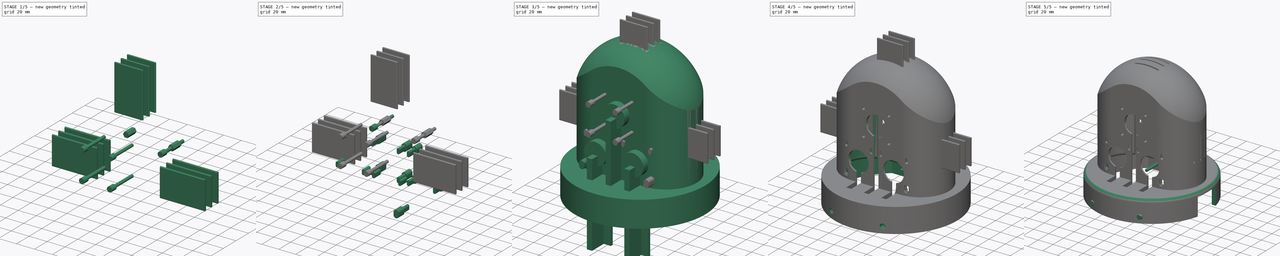
[diagram: build sequence overview — one tinted view per stage of 5, left to right]
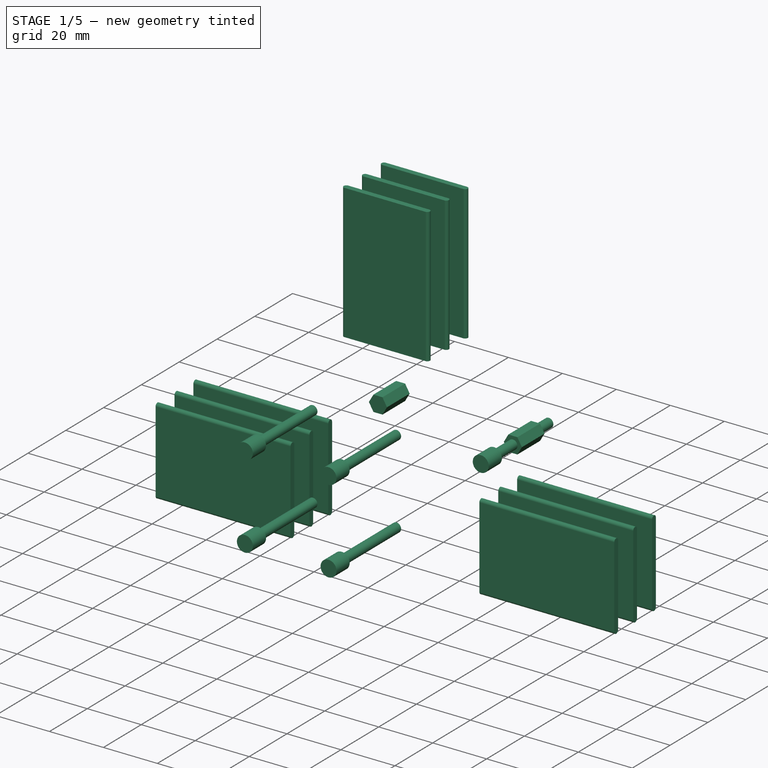
[diagram: stage 1 of 5 — iso view after this stage's code; geometry added in this stage tinted green]
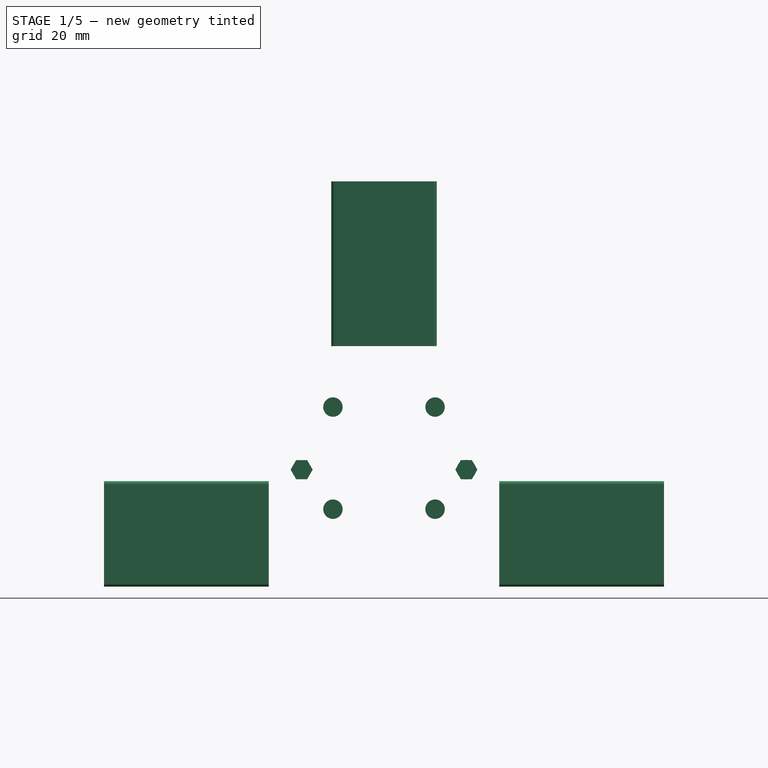
[diagram: stage 1 of 5 — front view after this stage's code; geometry added in this stage tinted green]
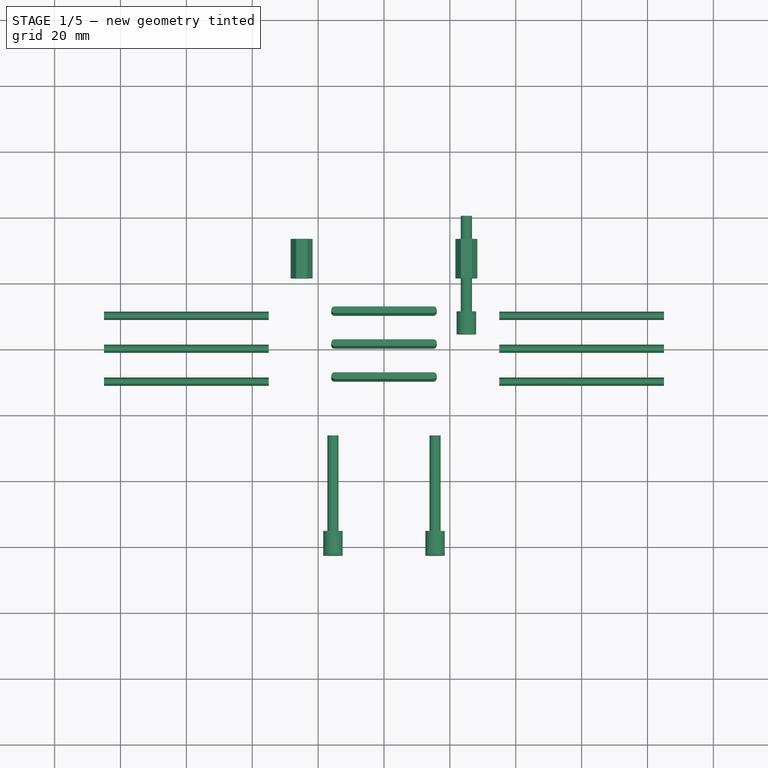
[diagram: stage 1 of 5 — top view after this stage's code; geometry added in this stage tinted green]
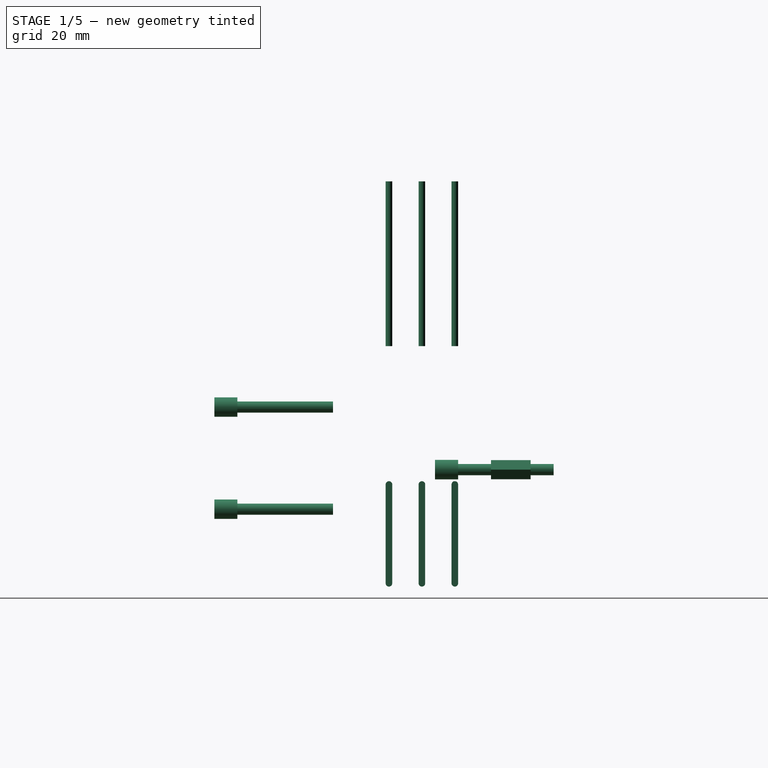
[diagram: stage 1 of 5 — right view after this stage's code; geometry added in this stage tinted green]
FCSTD DOCUMENT  (FreeCAD 0.16RUnknown)
Label: Art1Body
License: All rights reserved
LicenseURL: http://en.wikipedia.org/wiki/All_rights_reserved
objects: Part::FeaturePython×44, Part::MultiFuse×14, Part::Cut×10, Sketcher::SketchObject×8, Part::Cylinder×6, Part::Box×6, PartDesign::Pad×5, PartDesign::Revolution×2, Part::Prism×1, Part::Offset×1, App::DocumentObjectGroup×1, Part::Fillet×1
note: 105 computed .brp shape members not serialized (recipe doc carries the construction recipe); baked Part::Feature solids carry a one-line shape summary decoded from their .brp

FEATURE [Part::Cylinder] Cylinder  label="M3BoltHead"
  Angle = 360
  Height = 7
  Radius = 2.95
FEATURE [Part::Cylinder] Cylinder001  label="M3BoltBody"
  Angle = 360
  Height = 30
  Placement = pos=(0,0,6) rot=(0,0,1;0rad)
  Radius = 1.7
FEATURE [Part::MultiFuse] Fusion  label="M3Bolt"
  Shapes = -> [Cylinder001,Cylinder]
FEATURE [Part::Prism] Prism  label="M3Nut"
  Circumradius = 3.35
  Height = 12
  Polygon = 6
FEATURE [Part::FeaturePython] Clone347  label="Clone of M3Bolt117"  # Draft clone (typed FeaturePython)
  Objects = -> [Fusion]
  Placement = pos=(25,4,94.5) rot=(0,0.707107,0.707107;3.14159rad)
  Scale = (1,1,1)
FEATURE [Part::FeaturePython] Clone348  label="Clone of M3Nut015"  # Draft clone (typed FeaturePython)
  Objects = -> [Prism]
  Placement = pos=(-25,33,94.5) rot=(1,0,0;1.5708rad)
  Scale = (1,1,1)
FEATURE [Part::FeaturePython] Clone349  label="Clone of M3Nut016"  # Draft clone (typed FeaturePython)
  Objects = -> [Prism]
  Placement = pos=(25,33,94.5) rot=(1,0,0;1.5708rad)
  Scale = (1,1,1)
FEATURE [App::DocumentObjectGroup] Group  label="Master"
  Group = -> [Fusion,Prism,Pad006,Fusion015,Fusion017,Cylinder1003,Cut020]
FEATURE [Part::FeaturePython] Clone  label="Clone of M3Bolt"  # Draft clone (typed FeaturePython)
  Objects = -> [Fusion]
  Placement = pos=(15.5,-63,113.5) rot=(-1,0,0;1.5708rad)
  Scale = (1,1,1)
FEATURE [Part::FeaturePython] Clone350  label="Clone of M3Bolt118"  # Draft clone (typed FeaturePython)
  Objects = -> [Fusion]
  Placement = pos=(15.5,-63,82.5) rot=(-1,0,0;1.5708rad)
  Scale = (1,1,1)
FEATURE [Part::FeaturePython] Clone351  label="Clone of M3Bolt119"  # Draft clone (typed FeaturePython)
  Objects = -> [Fusion]
  Placement = pos=(-15.5,-63,113.5) rot=(-1,0,0;1.5708rad)
  Scale = (1,1,1)
FEATURE [Part::FeaturePython] Clone352  label="Clone of M3Bolt120"  # Draft clone (typed FeaturePython)
  Objects = -> [Fusion]
  Placement = pos=(-15.5,-63,82.5) rot=(-1,0,0;1.5708rad)
  Scale = (1,1,1)
FEATURE [Sketcher::SketchObject] Sketch
  Placement = pos=(60,0,60) rot=(0.57735,0.57735,0.57735;2.0944rad)
  sketch-geometry (4):
    g0: ArcOfCircle CenterX=0 CenterY=30 CenterZ=0 NormalX=0 NormalY=0 NormalZ=1 Radius=1 StartAngle=0 EndAngle=3.14159
    g1: ArcOfCircle CenterX=0 CenterY=0 CenterZ=0 NormalX=0 NormalY=0 NormalZ=1 Radius=1 StartAngle=3.14159 EndAngle=6.28319
    g2: LineSegment StartX=-1 StartY=30 StartZ=0 EndX=-1 EndY=0 EndZ=0
    g3: LineSegment StartX=1 StartY=30 StartZ=0 EndX=1 EndY=0 EndZ=0
  constraints (9):
    c: Tangent(g0,g3) = 1.5708
    c: Tangent(g0,g2) = -1.5708
    c: Tangent(g2,g1) = -1.5708
    c: Tangent(g3,g1) = 1.5708
    c: Vertical(g2)
    c: Equal(g0,g1)
    c: DistanceY(g2,g2) = 30
    c: Radius(g0) = 1
    c: Coincident(g1,g-1)
FEATURE [PartDesign::Pad] Pad
  Length = 50
  Length2 = 100
  Midplane = true
  Placement = pos=(60,0,60) rot=(0.57735,0.57735,0.57735;2.0944rad)
  Sketch = -> Sketch
  Type = 0
FEATURE [Part::FeaturePython] Clone353  label="Clone of Pad"  # Draft clone (typed FeaturePython)
  Objects = -> [Pad]
  Placement = pos=(60,10,60) rot=(0.57735,0.57735,0.57735;2.0944rad)
  Scale = (1,1,1)
FEATURE [Part::FeaturePython] Clone354  label="Clone of Pad001"  # Draft clone (typed FeaturePython)
  Objects = -> [Pad]
  Placement = pos=(60,-10,60) rot=(0.57735,0.57735,0.57735;2.0944rad)
  Scale = (1,1,1)
FEATURE [Part::MultiFuse] Fusion058
  Placement = pos=(0,0,0) rot=(0,0,1;3.14159rad)
  Shapes = -> [Clone354,Clone353,Pad]
FEATURE [Part::FeaturePython] Clone355  label="Clone of Fusion058"  # Draft clone (typed FeaturePython)
  Objects = -> [Fusion058]
  Scale = (1,1,1)
FEATURE [Part::FeaturePython] Clone356  label="Clone of Fusion059"  # Draft clone (typed FeaturePython)
  Objects = -> [Fusion058]
  Placement = pos=(-75,0,217) rot=(0,1,0;1.5708rad)
  Scale = (1,1,1)
FEATURE [Part::MultiFuse] Fusion059
  Shapes = -> [Clone355,Clone356,Fusion058]
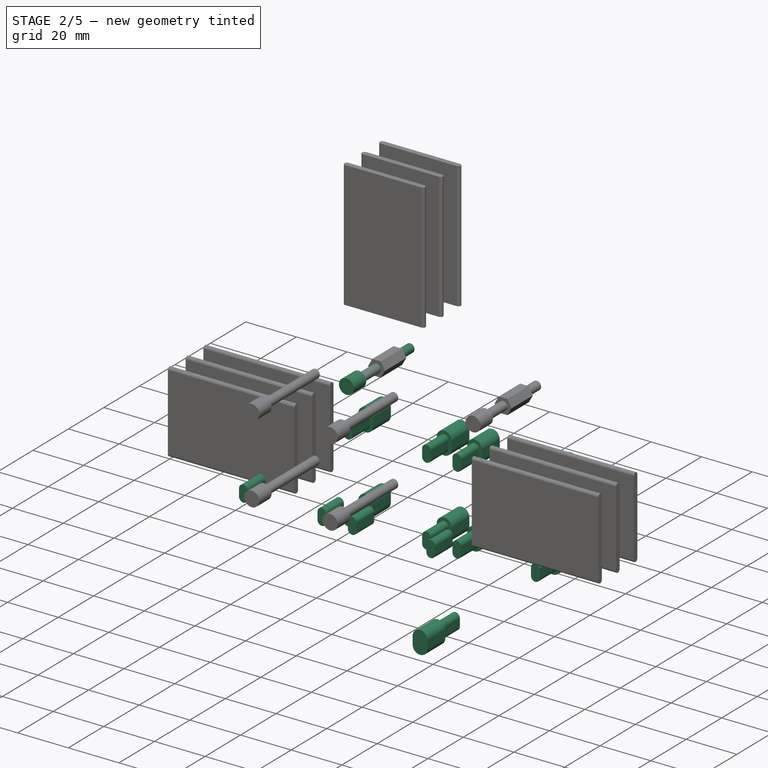
[diagram: stage 2 of 5 — iso view after this stage's code; geometry added in this stage tinted green]
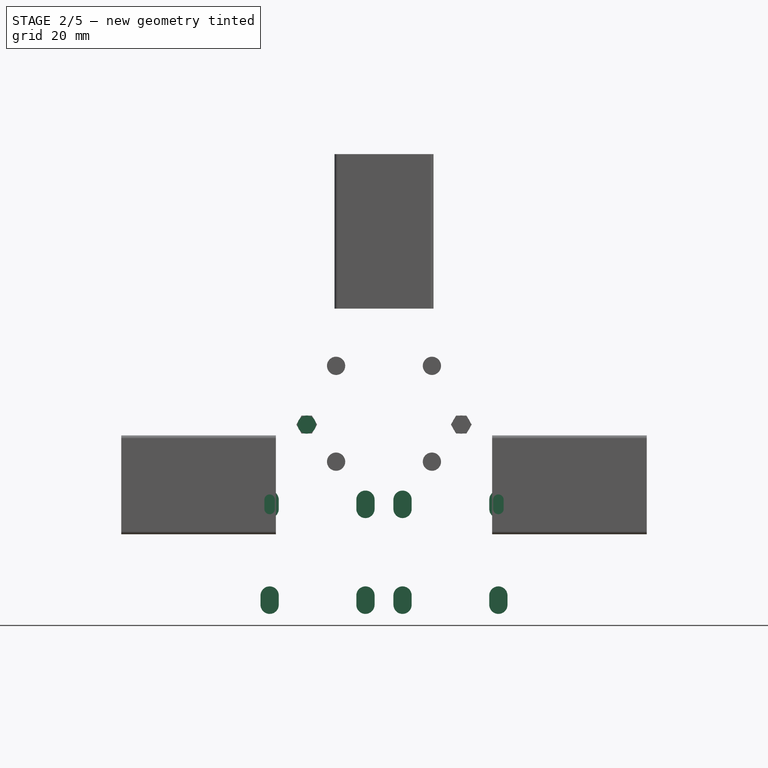
[diagram: stage 2 of 5 — front view after this stage's code; geometry added in this stage tinted green]
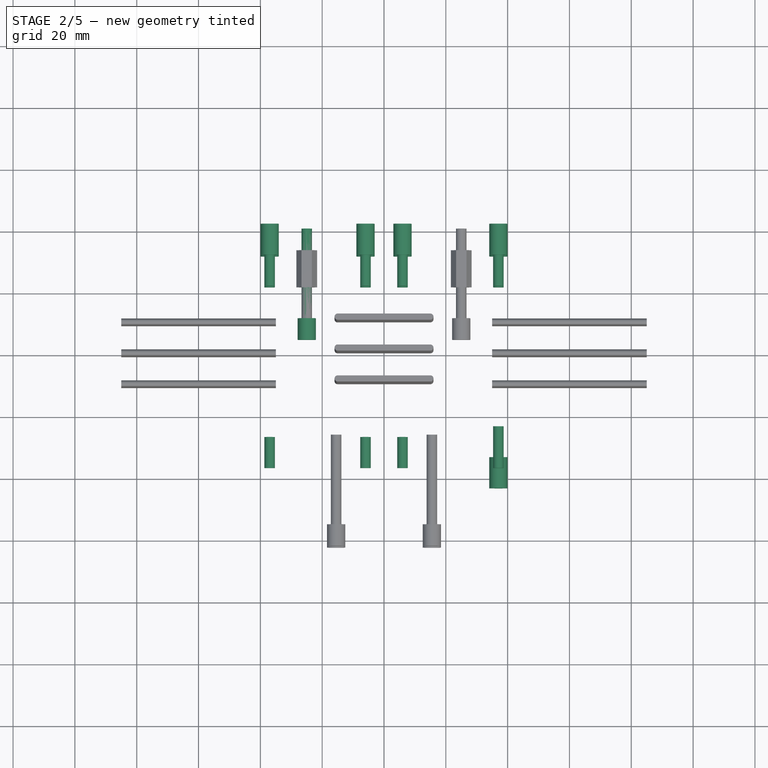
[diagram: stage 2 of 5 — top view after this stage's code; geometry added in this stage tinted green]
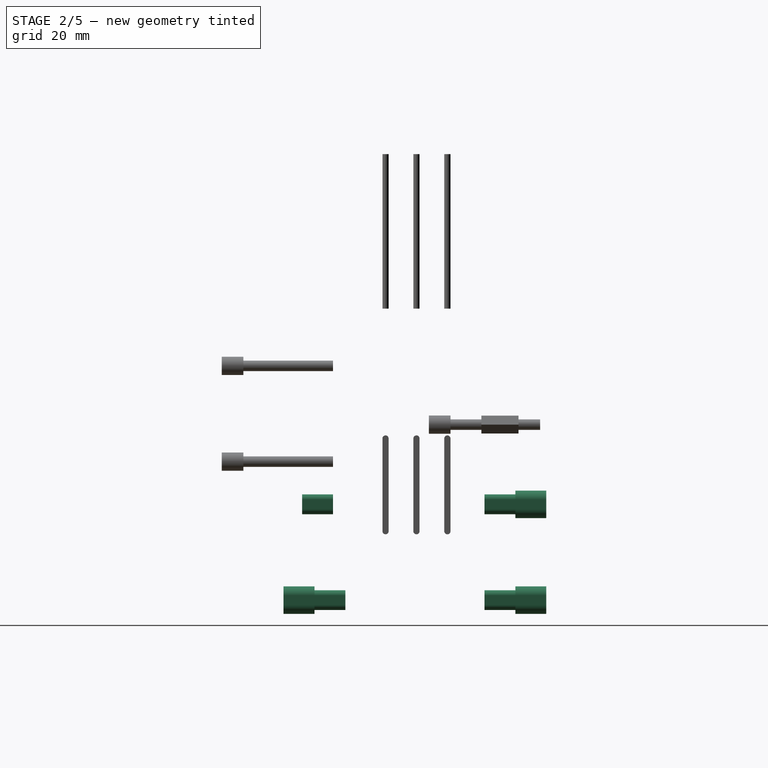
[diagram: stage 2 of 5 — right view after this stage's code; geometry added in this stage tinted green]
FEATURE [Sketcher::SketchObject] Sketch009
  sketch-geometry (4):
    g0: ArcOfCircle CenterX=-1.5 CenterY=0 CenterZ=0 NormalX=0 NormalY=0 NormalZ=1 Radius=1.7 StartAngle=1.5708 EndAngle=4.71239
    g1: ArcOfCircle CenterX=1.5 CenterY=0 CenterZ=0 NormalX=0 NormalY=0 NormalZ=1 Radius=1.7 StartAngle=4.71239 EndAngle=7.85398
    g2: LineSegment StartX=-1.5 StartY=-1.7 StartZ=0 EndX=1.5 EndY=-1.7 EndZ=0
    g3: LineSegment StartX=-1.5 StartY=1.7 StartZ=0 EndX=1.5 EndY=1.7 EndZ=0
  constraints (10):
    c: Tangent(g0,g3) = 1.5708
    c: Tangent(g0,g2) = -1.5708
    c: Tangent(g2,g1) = -1.5708
    c: Tangent(g3,g1) = 1.5708
    c: Horizontal(g2)
    c: Equal(g0,g1)
    c: Radius(g0) = 1.7
    c: DistanceX(g0,g1) = 3
    c: PointOnObject(g0,g-1)
    c: DistanceX(g-1,g0) = -1.5
FEATURE [PartDesign::Pad] Pad006  label="M3BoltSlider"
  Length = 10
  Length2 = 100
  Sketch = -> Sketch009
  Type = 0
FEATURE [Part::FeaturePython] Clone040  label="Clone of M3BoltSlider003"  # Draft clone (typed FeaturePython)
  Objects = -> [Pad006]
  Scale = (1,1,1)
FEATURE [Sketcher::SketchObject] Sketch010
  Placement = pos=(0,0,10) rot=(0,0,1;0rad)
  sketch-geometry (4):
    g0: ArcOfCircle CenterX=-1.5 CenterY=0 CenterZ=0 NormalX=0 NormalY=0 NormalZ=1 Radius=2.95 StartAngle=1.5708 EndAngle=4.71239
    g1: ArcOfCircle CenterX=1.5 CenterY=0 CenterZ=0 NormalX=0 NormalY=0 NormalZ=1 Radius=2.95 StartAngle=4.71239 EndAngle=7.85398
    g2: LineSegment StartX=-1.5 StartY=-2.95 StartZ=0 EndX=1.5 EndY=-2.95 EndZ=0
    g3: LineSegment StartX=-1.5 StartY=2.95 StartZ=0 EndX=1.5 EndY=2.95 EndZ=0
  constraints (10):
    c: Tangent(g0,g3) = 1.5708
    c: Tangent(g0,g2) = -1.5708
    c: Tangent(g2,g1) = -1.5708
    c: Tangent(g3,g1) = 1.5708
    c: Horizontal(g2)
    c: Equal(g0,g1)
    c: Radius(g0) = 2.95
    c: DistanceX(g0,g1) = 3
    c: PointOnObject(g0,g-1)
    c: DistanceX(g-1,g0) = -1.5
FEATURE [PartDesign::Pad] Pad007  label="M3BoltSliderHead"
  Length = 10
  Length2 = 100
  Placement = pos=(0,0,10) rot=(0,0,1;0rad)
  Sketch = -> Sketch010
  Type = 0
FEATURE [Part::MultiFuse] Fusion015  label="M3BoldSliderWithHead"
  Shapes = -> [Pad007,Clone040]
FEATURE [Part::FeaturePython] Clone045  label="Clone of M3BoldSliderWithHead001"  # Draft clone (typed FeaturePython)
  Objects = -> [Fusion015]
  Placement = pos=(37,-23,37.7) rot=(0.57735,-0.57735,0.57735;2.0944rad)
  Scale = (1,1,1)
FEATURE [Part::FeaturePython] Clone046  label="Clone of M3BoltSlider004"  # Draft clone (typed FeaturePython)
  Objects = -> [Pad006]
  Placement = pos=(-6,-27,68.7) rot=(0.57735,-0.57735,0.57735;2.0944rad)
  Scale = (1,1,1)
FEATURE [Part::FeaturePython] Clone047  label="Clone of M3BoltSlider005"  # Draft clone (typed FeaturePython)
  Objects = -> [Pad006]
  Placement = pos=(6,-27,68.7) rot=(0.57735,-0.57735,0.57735;2.0944rad)
  Scale = (1,1,1)
FEATURE [Part::FeaturePython] Clone048  label="Clone of M3BoltSlider006"  # Draft clone (typed FeaturePython)
  Objects = -> [Pad006]
  Placement = pos=(37,-27,68.7) rot=(0.57735,-0.57735,0.57735;2.0944rad)
  Scale = (1,1,1)
FEATURE [Sketcher::SketchObject] Sketch018
  Placement = pos=(2e-12,35,98) rot=(1,0,0;1.5708rad)
  sketch-geometry (4):
    g0: ArcOfCircle CenterX=0 CenterY=0 CenterZ=0 NormalX=0 NormalY=0 NormalZ=1 Radius=28 StartAngle=0.167447 EndAngle=2.97414
    g1: ArcOfCircle CenterX=0 CenterY=0 CenterZ=0 NormalX=0 NormalY=0 NormalZ=1 Radius=20 StartAngle=0.167448 EndAngle=2.97414
    g2: ArcOfCircle CenterX=23.6643 CenterY=4 CenterZ=0 NormalX=0 NormalY=0 NormalZ=1 Radius=4 StartAngle=3.30904 EndAngle=6.45063
    g3: ArcOfCircle CenterX=-23.6643 CenterY=4 CenterZ=0 NormalX=0 NormalY=0 NormalZ=1 Radius=4 StartAngle=2.97414 EndAngle=6.11574
  constraints (14):
    c: Coincident(g0,g-1)
    c: Coincident(g1,g-1)
    c: Coincident(g2,g0)
    c: Coincident(g3,g1)
    c: Coincident(g3,g0)
    c: Coincident(g1,g2)
    c: Radius(g1) = 20
    c: Radius(g0) = 28
    c: Tangent(g1,g3)
    c: Tangent(g1,g2)
    c: Tangent(g-1,g2)
    c: Tangent(g-1,g3)
    c: Tangent(g3,g0)
    c: Tangent(g2,g0)
FEATURE [Part::FeaturePython] Clone069  label="Clone of M3BoldSliderWithHead002"  # Draft clone (typed FeaturePython)
  Objects = -> [Fusion015]
  Placement = pos=(-37,22,37.7) rot=(0.57735,-0.57735,-0.57735;4.18879rad)
  Scale = (1,1,1)
FEATURE [Part::FeaturePython] Clone070  label="Clone of M3BoldSliderWithHead003"  # Draft clone (typed FeaturePython)
  Objects = -> [Fusion015]
  Placement = pos=(6,22,37.7) rot=(0.57735,-0.57735,-0.57735;4.18879rad)
  Scale = (1,1,1)
FEATURE [Part::FeaturePython] Clone071  label="Clone of M3BoldSliderWithHead004"  # Draft clone (typed FeaturePython)
  Objects = -> [Fusion015]
  Placement = pos=(-6,22,37.7) rot=(0.57735,-0.57735,-0.57735;4.18879rad)
  Scale = (1,1,1)
FEATURE [Part::FeaturePython] Clone072  label="Clone of M3BoldSliderWithHead005"  # Draft clone (typed FeaturePython)
  Objects = -> [Fusion015]
  Placement = pos=(37,22,37.7) rot=(0.57735,-0.57735,-0.57735;4.18879rad)
  Scale = (1,1,1)
FEATURE [Part::FeaturePython] Clone073  label="Clone of M3BoldSliderWithHead006"  # Draft clone (typed FeaturePython)
  Objects = -> [Fusion015]
  Placement = pos=(-37,22,68.7) rot=(0.57735,-0.57735,-0.57735;4.18879rad)
  Scale = (1,1,1)
FEATURE [Part::FeaturePython] Clone074  label="Clone of M3BoldSliderWithHead007"  # Draft clone (typed FeaturePython)
  Objects = -> [Fusion015]
  Placement = pos=(6,22,68.7) rot=(0.57735,-0.57735,-0.57735;4.18879rad)
  Scale = (1,1,1)
FEATURE [Part::FeaturePython] Clone075  label="Clone of M3BoldSliderWithHead008"  # Draft clone (typed FeaturePython)
  Objects = -> [Fusion015]
  Placement = pos=(-6,22,68.7) rot=(0.57735,-0.57735,-0.57735;4.18879rad)
  Scale = (1,1,1)
FEATURE [Part::FeaturePython] Clone076  label="Clone of M3BoldSliderWithHead009"  # Draft clone (typed FeaturePython)
  Objects = -> [Fusion015]
  Placement = pos=(37,22,68.7) rot=(0.57735,-0.57735,-0.57735;4.18879rad)
  Scale = (1,1,1)
FEATURE [Part::FeaturePython] Clone089  label="Clone of M3BoltSlider011"  # Draft clone (typed FeaturePython)
  Objects = -> [Pad006]
  Placement = pos=(-37,-27,68.7) rot=(0.57735,-0.57735,0.57735;2.0944rad)
  Scale = (1,1,1)
FEATURE [Part::FeaturePython] Clone346  label="Clone of M3Bolt116"  # Draft clone (typed FeaturePython)
  Objects = -> [Fusion]
  Placement = pos=(-25,4,94.5) rot=(0,0.707107,0.707107;3.14159rad)
  Scale = (1,1,1)
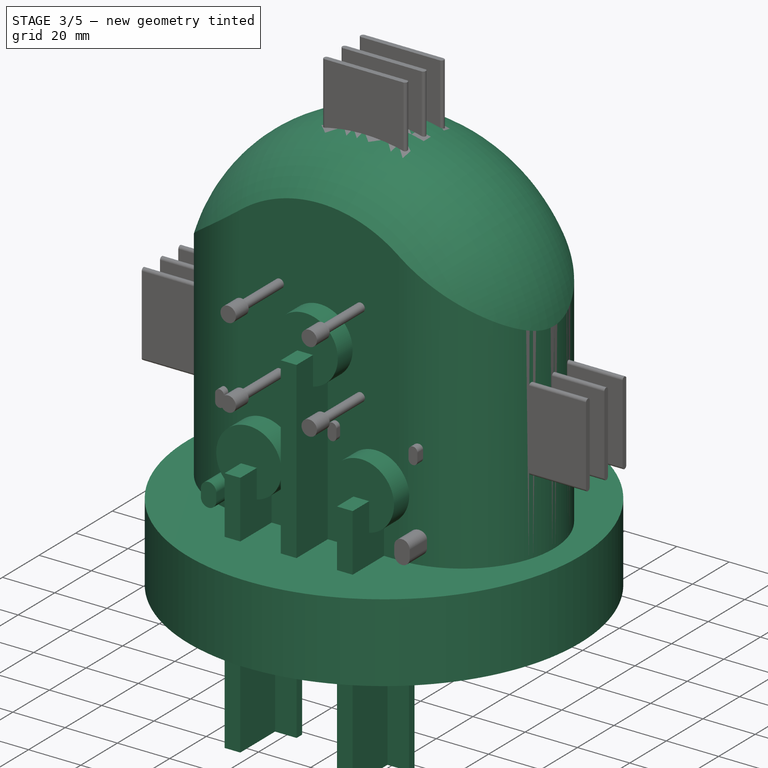
[diagram: stage 3 of 5 — iso view after this stage's code; geometry added in this stage tinted green]
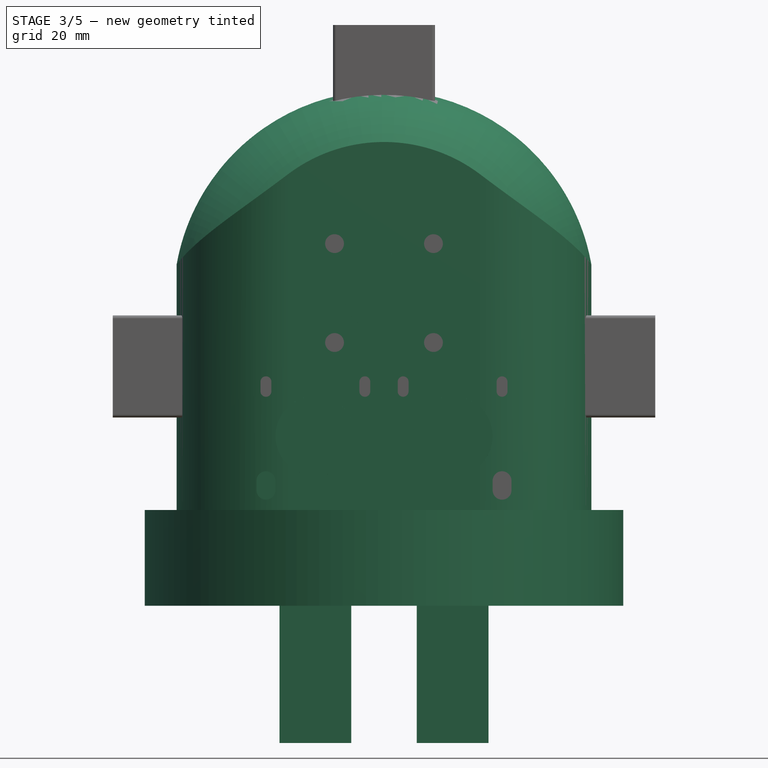
[diagram: stage 3 of 5 — front view after this stage's code; geometry added in this stage tinted green]
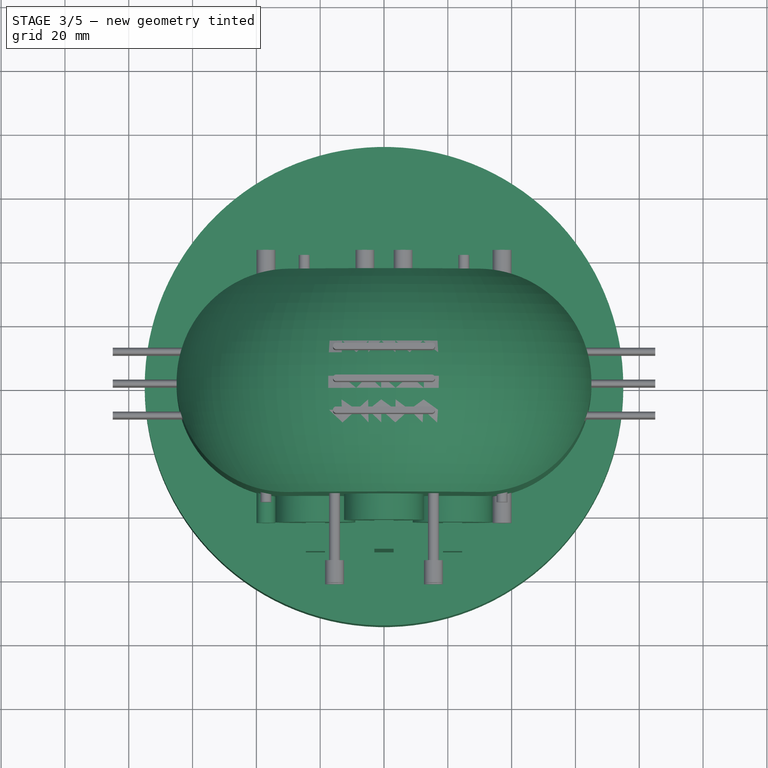
[diagram: stage 3 of 5 — top view after this stage's code; geometry added in this stage tinted green]
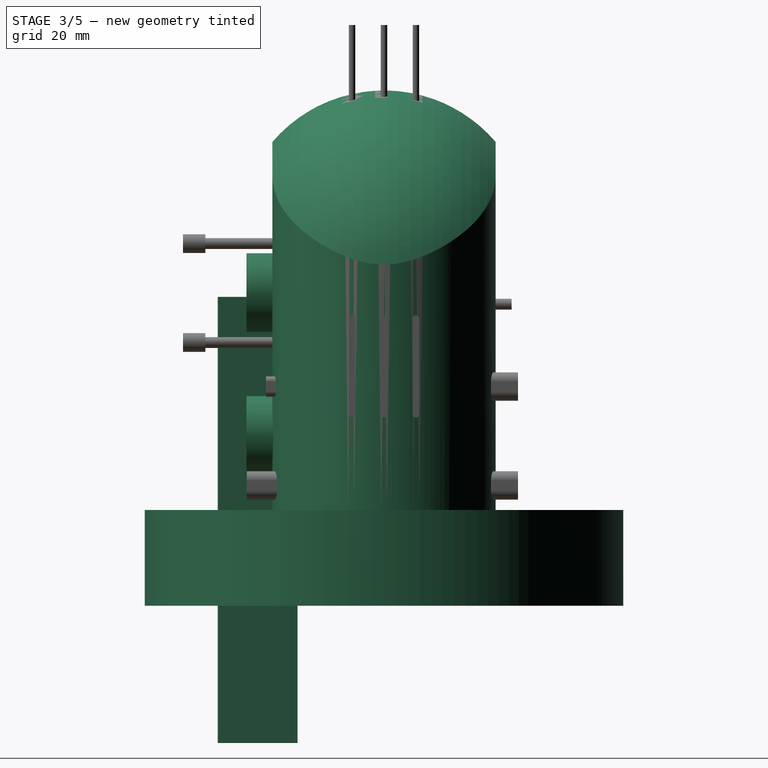
[diagram: stage 3 of 5 — right view after this stage's code; geometry added in this stage tinted green]
FEATURE [Part::Cylinder] Cylinder011  label="Cylinder009"
  Angle = 360
  Height = 30
  Radius = 75
FEATURE [Sketcher::SketchObject] Sketch012
  sketch-geometry (4):
    g0: ArcOfCircle CenterX=-30 CenterY=0 CenterZ=0 NormalX=0 NormalY=0 NormalZ=1 Radius=35 StartAngle=1.5708 EndAngle=4.71239
    g1: ArcOfCircle CenterX=30 CenterY=0 CenterZ=0 NormalX=0 NormalY=0 NormalZ=1 Radius=35 StartAngle=4.71239 EndAngle=7.85398
    g2: LineSegment StartX=-30 StartY=-35 StartZ=0 EndX=30 EndY=-35 EndZ=0
    g3: LineSegment StartX=-30 StartY=35 StartZ=0 EndX=30 EndY=35 EndZ=0
  constraints (10):
    c: Tangent(g0,g3) = 1.5708
    c: Tangent(g0,g2) = -1.5708
    c: Tangent(g2,g1) = -1.5708
    c: Tangent(g3,g1) = 1.5708
    c: Horizontal(g2)
    c: Equal(g0,g1)
    c: Radius(g0) = 35
    c: DistanceX(g2) = 60
    c: PointOnObject(g0,g-1)
    c: DistanceX(g-1,g0) = -30
FEATURE [Sketcher::SketchObject] Sketch014
  Placement = pos=(0,0,65.5) rot=(0,0,1;0rad)
  sketch-geometry (6):
    g0: ArcOfCircle CenterX=-20 CenterY=0 CenterZ=0 NormalX=0 NormalY=0 NormalZ=1 Radius=46 StartAngle=1.5708 EndAngle=4.71239
    g1: LineSegment StartX=-20 StartY=46 StartZ=0 EndX=-20 EndY=51 EndZ=0
    g2: LineSegment StartX=-20 StartY=51 StartZ=0 EndX=-120 EndY=51 EndZ=0
    g3: LineSegment StartX=-120 StartY=51 StartZ=0 EndX=-120 EndY=-51 EndZ=0
    g4: LineSegment StartX=-120 StartY=-51 StartZ=0 EndX=-20 EndY=-51 EndZ=0
    g5: LineSegment StartX=-20 StartY=-51 StartZ=0 EndX=-20 EndY=-46 EndZ=0
  constraints (19):
    c: PointOnObject(g0,g-1)
    c: Radius(g0) = 46
    c: Coincident(g1,g0)
    c: Vertical(g1)
    c: Coincident(g1,g2)
    c: Horizontal(g2)
    c: Coincident(g2,g3)
    c: Vertical(g3)
    c: Coincident(g3,g4)
    c: Horizontal(g4)
    c: Coincident(g4,g5)
    c: Coincident(g0,g5)
    c: DistanceX(g-1,g0) = -20
    c: DistanceY(g0,g0) = -92
    c: Vertical(g5)
    c: Equal(g5,g1)
    c: Equal(g2,g4)
    c: DistanceY(g1) = 5
    c: DistanceX(g4) = 100
FEATURE [PartDesign::Revolution] Revolution002
  Angle = 180
  Axis = (0,1,0)
  Base = (0,0,65.5)
  Placement = pos=(0,0,65.5) rot=(0,0,1;0rad)
  ReferenceAxis = -> Sketch014 [V_Axis]
  Sketch = -> Sketch014
FEATURE [PartDesign::Pad] Pad008
  Length = 131.5
  Length2 = 100
  Sketch = -> Sketch012
  Type = 0
FEATURE [Part::Cut] Cut017
  Base = -> Pad008
  Placement = pos=(0,0,30) rot=(0,0,1;0rad)
  Tool = -> Revolution002
FEATURE [Part::Box] Box004  label="Cube004"
  Height = 55
  Length = 85.5
  Placement = pos=(-42.75,20,22.5) rot=(0,0,1;0rad)
  Width = 10
FEATURE [Part::Box] Box005  label="Cube005"
  Height = 55
  Length = 82.5
  Placement = pos=(-41.15,-31.2,18.5) rot=(0,0,1;0rad)
  Width = 10
FEATURE [Part::Box] Box006  label="Cube006"
  Height = 60
  Length = 39.5
  Placement = pos=(-19.65,-31.2,58.5) rot=(0,0,1;0rad)
  Width = 10
FEATURE [Part::Box] Box008  label="Cube008"
  Height = 95
  Length = 22.5
  Placement = pos=(-7.5,19,0) rot=(0,0,1;0rad)
  Width = 3
FEATURE [Part::Cylinder] Cylinder012  label="Cylinder010"
  Angle = 360
  Height = 13
  Placement = pos=(3.75,22,96.2) rot=(1,0,0;1.5708rad)
  Radius = 12.5
FEATURE [Part::Box] Box009  label="Cube009"
  Height = 95
  Length = 6
  Placement = pos=(0.75,0,0) rot=(0,0,1;0rad)
  Width = 25
FEATURE [Part::MultiFuse] Fusion017  label="Art1MotorHoleMaster"
  Shapes = -> [Cylinder012,Box008,Box009]
FEATURE [Part::FeaturePython] Clone041  label="Clone of Fusion017"  # Draft clone (typed FeaturePython)
  Objects = -> [Fusion017]
  Placement = pos=(-3.75,-52.1,1.8) rot=(0,0,1;0rad)
  Scale = (1,1,1)
FEATURE [Part::FeaturePython] Clone042  label="Clone of Fusion018"  # Draft clone (typed FeaturePython)
  Objects = -> [Fusion017]
  Placement = pos=(-25.25,-52.1,-43) rot=(0,0,1;0rad)
  Scale = (1,1,1)
FEATURE [Part::FeaturePython] Clone043  label="Clone of Fusion019"  # Draft clone (typed FeaturePython)
  Objects = -> [Fusion017]
  Placement = pos=(17.75,-52.1,-43) rot=(0,0,1;0rad)
  Scale = (1,1,1)
FEATURE [Part::FeaturePython] Clone044  label="Clone of M3BoldSliderWithHead"  # Draft clone (typed FeaturePython)
  Objects = -> [Fusion015]
  Placement = pos=(-37,-23,37.7) rot=(0.57735,-0.57735,0.57735;2.0944rad)
  Scale = (1,1,1)
FEATURE [Part::MultiFuse] Fusion027
  Shapes = -> [Clone041,Clone042,Clone043]
FEATURE [Part::MultiFuse] Fusion054
  Shapes = -> [Fusion027,Box006,Box005,Box004]
FEATURE [Part::MultiFuse] Fusion056
  Shapes = -> [Clone352,Clone044,Clone045,Clone046,Clone047,Clone048,Clone069,Clone070,Clone071,Clone072,Clone073,Clone074,Clone075,Clone076,Clone089,Clone346,Clone347,Clone348,Clone349,Clone351,Clone350,Clone]
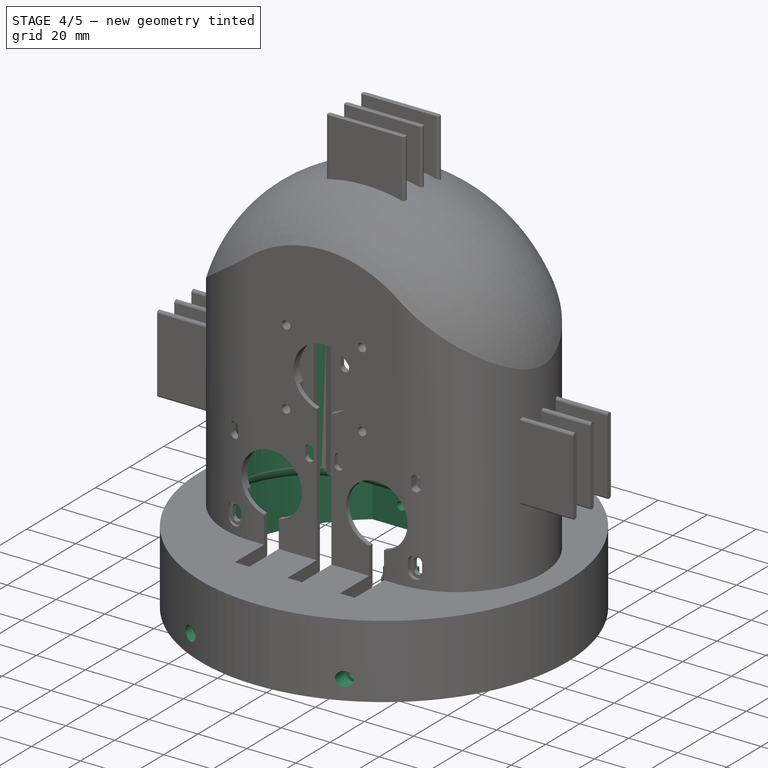
[diagram: stage 4 of 5 — iso view after this stage's code; geometry added in this stage tinted green]
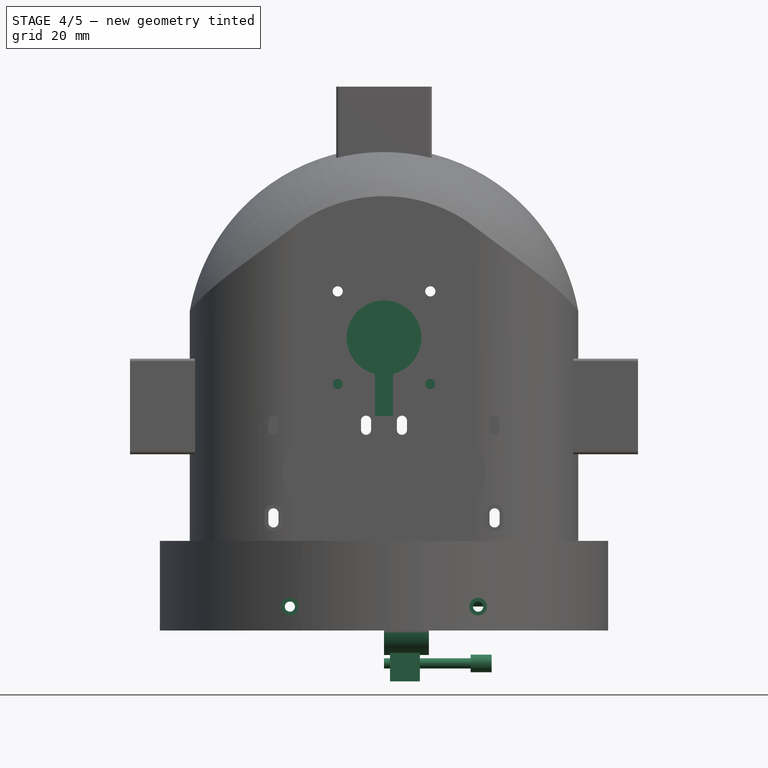
[diagram: stage 4 of 5 — front view after this stage's code; geometry added in this stage tinted green]
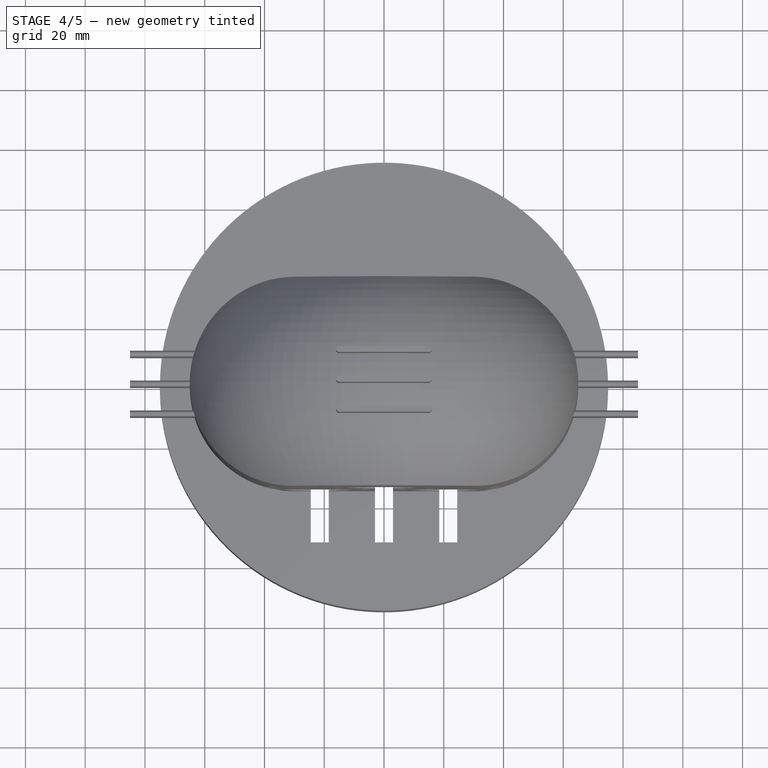
[diagram: stage 4 of 5 — top view after this stage's code; geometry added in this stage tinted green]
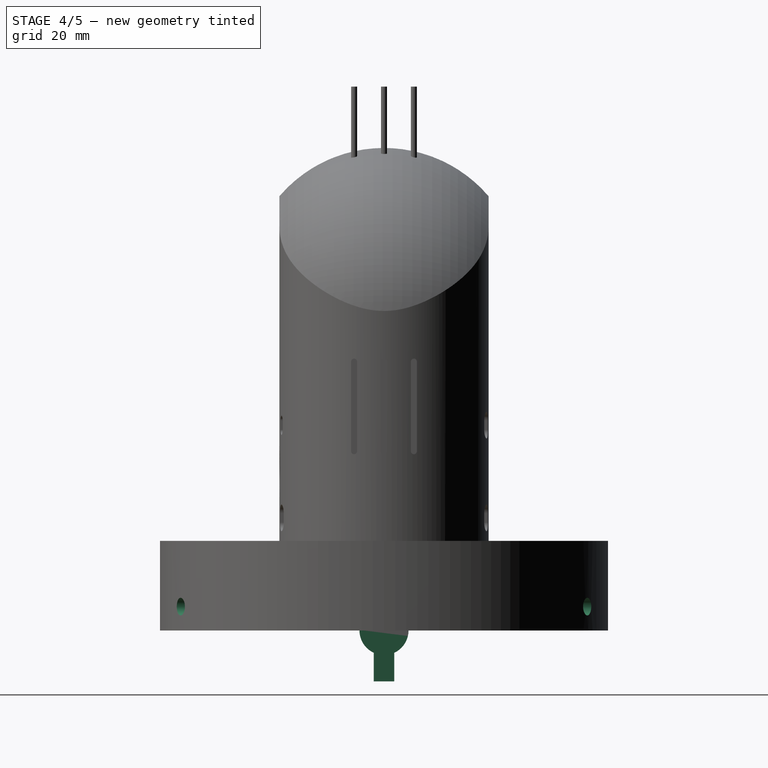
[diagram: stage 4 of 5 — right view after this stage's code; geometry added in this stage tinted green]
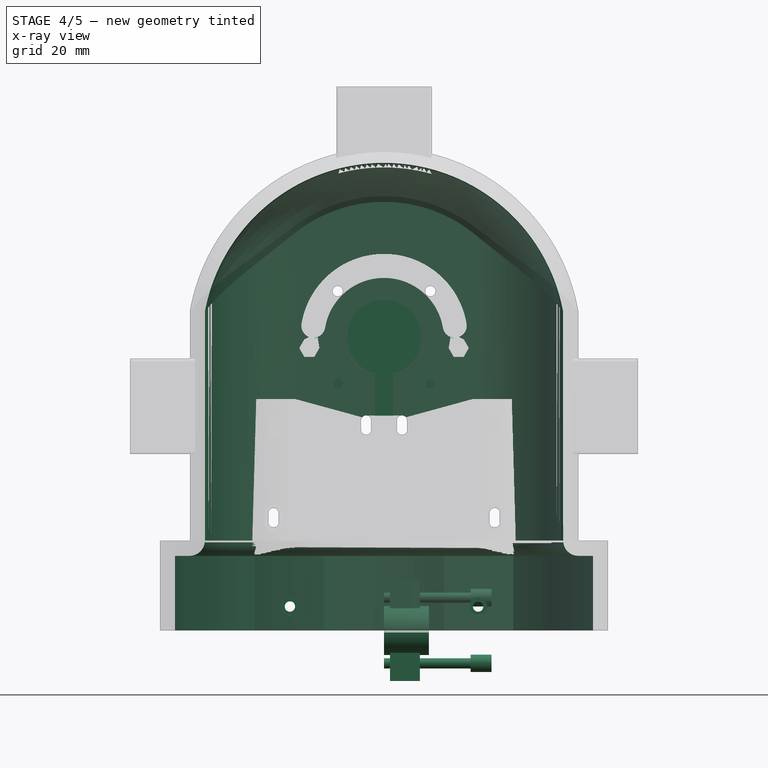
[diagram: stage 4 of 5 — x-ray composite at the front view; earlier geometry ghosted, this stage's added geometry solid]
FEATURE [Part::MultiFuse] Fusion016
  Shapes = -> [Cylinder011,Cut017]
FEATURE [Part::Cylinder] Cylinder1003  label="Bearing625ZZMaster"
  Angle = 360
  Height = 15
  Radius = 8.2
FEATURE [Part::Box] Box246  label="Cube010"
  Height = 34
  Length = 10
  Placement = pos=(2,-3.45,-17) rot=(0,0,1;0rad)
  Width = 6.9
FEATURE [Part::FeaturePython] Clone058  label="Clone of Bearing625ZZMaster001"  # Draft clone (typed FeaturePython)
  Objects = -> [Cylinder1003]
  Placement = pos=(0,0,0) rot=(0,1,0;1.5708rad)
  Scale = (1,1,1)
FEATURE [Part::FeaturePython] Clone061  label="Clone of M3Bolt021"  # Draft clone (typed FeaturePython)
  Objects = -> [Fusion]
  Placement = pos=(36,0,11) rot=(0,-1,0;1.5708rad)
  Scale = (1,1,1)
FEATURE [Part::FeaturePython] Clone062  label="Clone of M3Bolt022"  # Draft clone (typed FeaturePython)
  Objects = -> [Fusion]
  Placement = pos=(36,0,-11) rot=(0,-1,0;1.5708rad)
  Scale = (1,1,1)
FEATURE [Part::MultiFuse] Fusion021
  Shapes = -> [Clone058,Clone062,Clone061,Box246]
FEATURE [PartDesign::Pad] Pad011
  Length = 20
  Length2 = 100
  Midplane = true
  Placement = pos=(2e-12,35,98) rot=(1,0,0;1.5708rad)
  Sketch = -> Sketch018
  Type = 0
FEATURE [Part::Cylinder] Cylinder1005  label="Cylinder012"
  Angle = 360
  Height = 5
  Radius = 70
FEATURE [Part::FeaturePython] Clone077  label="Clone of Fusion016"  # Draft clone (typed FeaturePython)
  Objects = -> [Fusion016]
  Scale = (1,1,1)
FEATURE [Part::Offset] Offset
  Fill = false
  Intersection = false
  Join = 0
  Mode = 0
  SelfIntersection = false
  Source = -> Clone077
  Value = -5
FEATURE [Part::MultiFuse] Fusion032
  Shapes = -> [Cylinder1005,Offset]
FEATURE [Part::Cut] Cut044
  Base = -> Fusion016
  Tool = -> Fusion032
FEATURE [Part::Cut] Cut045
  Base = -> Cut044
  Tool = -> Fusion054
FEATURE [Part::Cut] Cut046
  Base = -> Cut045
  Tool = -> Pad011
FEATURE [Part::MultiFuse] Fusion055
  Shapes = -> [Cut046]
FEATURE [Part::Cut] Cut047
  Base = -> Fusion055
FEATURE [Part::Cut] Cut
  Base = -> Cut047
  Tool = -> Fusion056
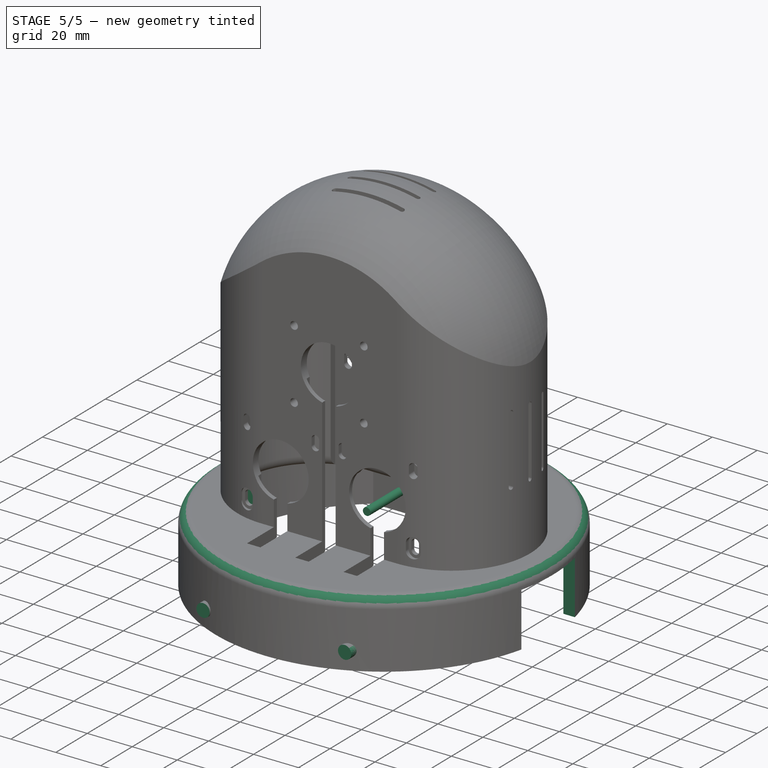
[diagram: stage 5 of 5 — iso view after this stage's code; geometry added in this stage tinted green]
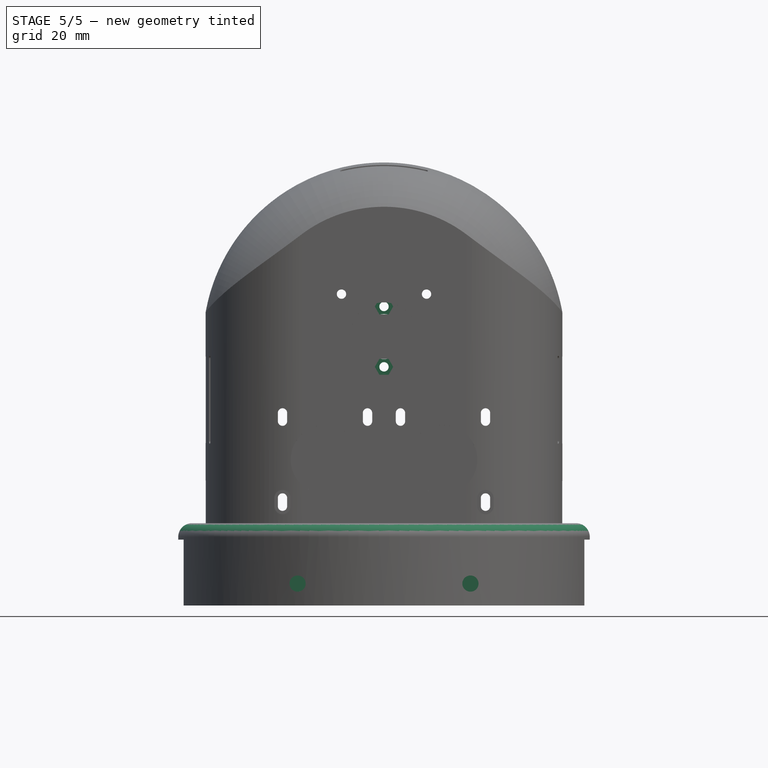
[diagram: stage 5 of 5 — front view after this stage's code; geometry added in this stage tinted green]
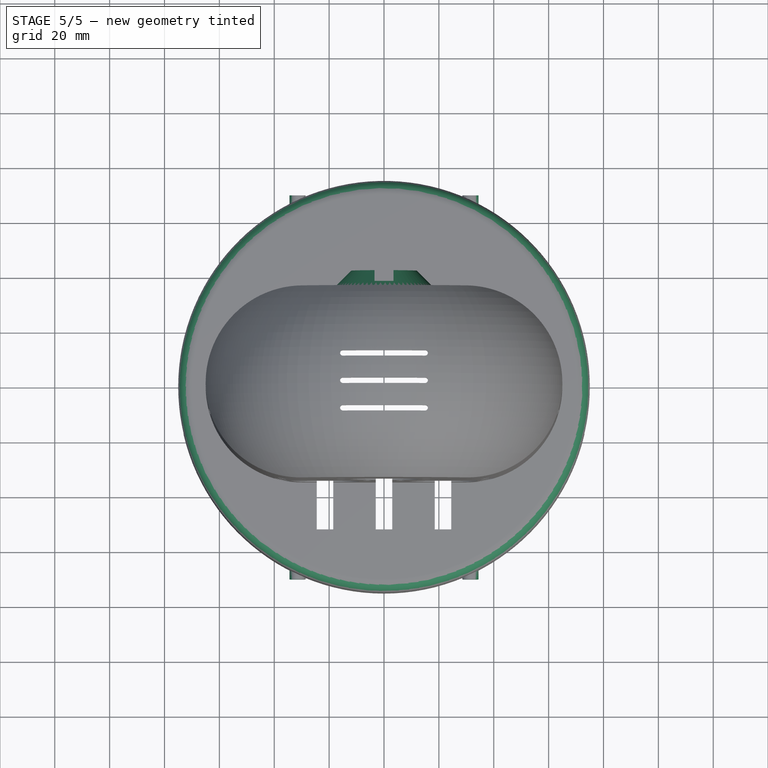
[diagram: stage 5 of 5 — top view after this stage's code; geometry added in this stage tinted green]
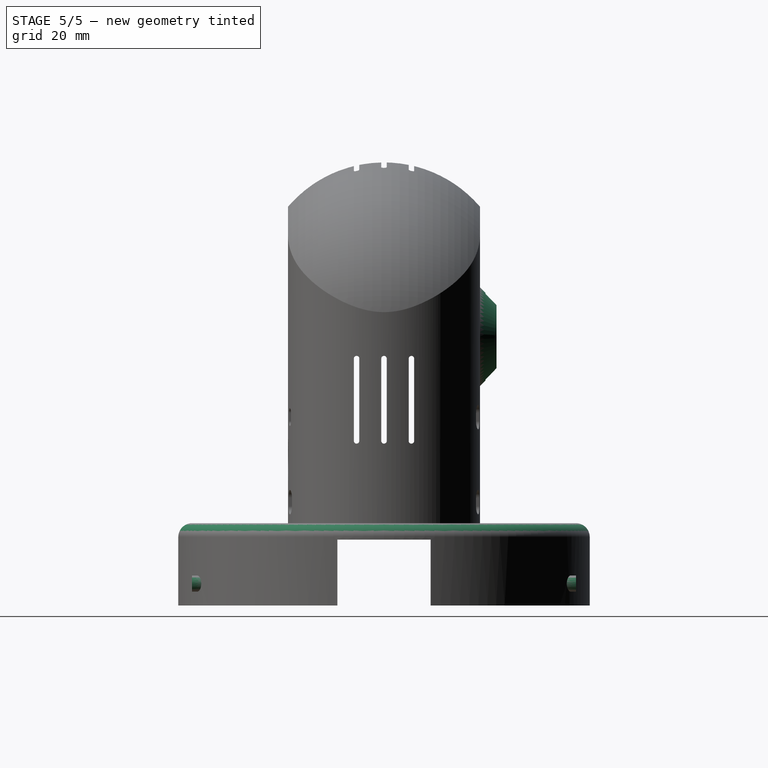
[diagram: stage 5 of 5 — right view after this stage's code; geometry added in this stage tinted green]
FEATURE [Sketcher::SketchObject] Sketch015
  sketch-geometry (12):
    g0: ArcOfCircle CenterX=0 CenterY=0 CenterZ=0 NormalX=0 NormalY=0 NormalZ=1 Radius=71 StartAngle=0.886158 EndAngle=1.28524
    g1: LineSegment StartX=20 StartY=68.1249 StartZ=0 EndX=20 EndY=55 EndZ=0
    g2: LineSegment StartX=20 StartY=55 StartZ=0 EndX=44.8999 EndY=55 EndZ=0
    g3: LineSegment StartX=44.8999 StartY=-55 StartZ=0 EndX=20 EndY=-55 EndZ=0
    g4: LineSegment StartX=20 StartY=-55 StartZ=0 EndX=20 EndY=-68.1249 EndZ=0
    g5: LineSegment StartX=-44.8999 StartY=-55 StartZ=0 EndX=-20 EndY=-55 EndZ=0
    g6: LineSegment StartX=-20 StartY=-55 StartZ=0 EndX=-20 EndY=-68.1249 EndZ=0
    g7: LineSegment StartX=-44.8999 StartY=55 StartZ=0 EndX=-20 EndY=55 EndZ=0
    g8: LineSegment StartX=-20 StartY=55 StartZ=0 EndX=-20 EndY=68.1249 EndZ=0
    g9: ArcOfCircle CenterX=0 CenterY=0 CenterZ=0 NormalX=0 NormalY=0 NormalZ=1 Radius=71 StartAngle=1.85635 EndAngle=2.25543
    g10: ArcOfCircle CenterX=0 CenterY=0 CenterZ=0 NormalX=0 NormalY=0 NormalZ=1 Radius=71 StartAngle=4.02775 EndAngle=4.42683
    g11: ArcOfCircle CenterX=0 CenterY=0 CenterZ=0 NormalX=0 NormalY=0 NormalZ=1 Radius=71 StartAngle=4.99794 EndAngle=5.39703
  constraints (40):
    c: Coincident(g0,g-1)
    c: Radius(g0) = 71
    c: Vertical(g1)
    c: Coincident(g1,g2)
    c: Horizontal(g2)
    c: DistanceY(g-1,g1) = 55
    c: DistanceX(g-1,g1) = 20
    c: Horizontal(g3)
    c: Coincident(g3,g4)
    c: Vertical(g4)
    c: DistanceY(g-1,g3) = -55
    c: DistanceX(g-1,g3) = 20
    c: PointOnObject(g4,g0)
    c: Horizontal(g5)
    c: Coincident(g5,g6)
    c: PointOnObject(g6,g0)
    c: Vertical(g6)
    c: PointOnObject(g5,g0)
    c: DistanceY(g-1,g5) = -55
    c: DistanceX(g-1,g5) = -20
    c: PointOnObject(g7,g0)
    c: Horizontal(g7)
    c: Coincident(g7,g8)
    c: Vertical(g8)
    c: DistanceX(g-1,g7) = -20
    c: DistanceY(g-1,g7) = 55
    c: Coincident(g0,g2)
    c: Coincident(g11,g3)
    c: Equal(g0,g9)
    c: Coincident(g0,g1)
    c: Coincident(g9,g8)
    c: Coincident(g0,g9)
    c: Equal(g9,g10)
    c: PointOnObject(g9,g7)
    c: PointOnObject(g10,g5)
    c: Coincident(g9,g10)
    c: Equal(g10,g11)
    c: PointOnObject(g10,g6)
    c: PointOnObject(g11,g4)
    c: Coincident(g10,g11)
FEATURE [Part::FeaturePython] Clone052  label="Clone of M3Bolt015"  # Draft clone (typed FeaturePython)
  Objects = -> [Fusion]
  Placement = pos=(31.5,70,8) rot=(1,0,0;1.5708rad)
  Scale = (1,1,1)
FEATURE [Part::FeaturePython] Clone053  label="Clone of M3Bolt016"  # Draft clone (typed FeaturePython)
  Objects = -> [Fusion]
  Placement = pos=(31.5,-70,8) rot=(-1,0,0;1.5708rad)
  Scale = (1,1,1)
FEATURE [Part::FeaturePython] Clone054  label="Clone of M3Bolt017"  # Draft clone (typed FeaturePython)
  Objects = -> [Fusion]
  Placement = pos=(-31.5,-70,8) rot=(-1,0,0;1.5708rad)
  Scale = (1,1,1)
FEATURE [Part::FeaturePython] Clone055  label="Clone of M3Bolt018"  # Draft clone (typed FeaturePython)
  Objects = -> [Fusion]
  Placement = pos=(-31.5,70,8) rot=(1,0,0;1.5708rad)
  Scale = (1,1,1)
FEATURE [Sketcher::SketchObject] Sketch016
  sketch-geometry (4):
    g0: LineSegment StartX=0 StartY=0 StartZ=0 EndX=0 EndY=18 EndZ=0
    g1: LineSegment StartX=0 StartY=18 StartZ=0 EndX=6 EndY=12 EndZ=0
    g2: LineSegment StartX=6 StartY=12 StartZ=0 EndX=6 EndY=0 EndZ=0
    g3: LineSegment StartX=0 StartY=0 StartZ=0 EndX=6 EndY=0 EndZ=0
  constraints (11):
    c: Coincident(g0,g-1)
    c: Vertical(g0)
    c: Coincident(g1,g0)
    c: Coincident(g2,g1)
    c: PointOnObject(g2,g-1)
    c: Vertical(g2)
    c: Coincident(g3,g-1)
    c: Coincident(g3,g2)
    c: DistanceY(g2) = -12
    c: DistanceX(g3) = 6
    c: Angle(g1,g-1) = 0.785398
FEATURE [PartDesign::Revolution] Revolution003  label="625ZZBearingHousingNoHoles"
  Angle = 360
  Axis = (1,0,0)
  Base = (0,0,0)
  ReferenceAxis = -> Sketch016 [H_Axis]
  Sketch = -> Sketch016
FEATURE [Part::Cut] Cut020  label="625zzBearingHousingMaster"
  Base = -> Revolution003
  Tool = -> Fusion021
FEATURE [Part::FeaturePython] Clone063  label="Clone of 622zzBearingHousingMaster"  # Draft clone (typed FeaturePython)
  Objects = -> [Cut020]
  Placement = pos=(0,35,98) rot=(0,0,1;1.5708rad)
  Scale = (1,1,1)
FEATURE [Part::FeaturePython] Clone064  label="Clone of M3Bolt023"  # Draft clone (typed FeaturePython)
  Objects = -> [Fusion]
  Placement = pos=(2e-12,59,87) rot=(0,0.707107,-0.707107;3.14159rad)
  Scale = (1,1,1)
FEATURE [Part::FeaturePython] Clone065  label="Clone of M3Bolt024"  # Draft clone (typed FeaturePython)
  Objects = -> [Fusion]
  Placement = pos=(2e-12,59,109) rot=(0,0.707107,-0.707107;3.14159rad)
  Scale = (1,1,1)
FEATURE [Part::FeaturePython] Clone066  label="Clone of Bearing625ZZMaster002"  # Draft clone (typed FeaturePython)
  Objects = -> [Cylinder1003]
  Placement = pos=(0,32,98) rot=(-1,0,0;1.5708rad)
  Scale = (1,1,1)
FEATURE [Part::FeaturePython] Clone067  label="Clone of M3Nut001"  # Draft clone (typed FeaturePython)
  Objects = -> [Prism]
  Placement = pos=(0,20.5,87) rot=(-1,0,0;1.5708rad)
  Scale = (1,1,1)
FEATURE [Part::FeaturePython] Clone068  label="Clone of M3Nut002"  # Draft clone (typed FeaturePython)
  Objects = -> [Prism]
  Placement = pos=(0,20.5,109) rot=(-1,0,0;1.5708rad)
  Scale = (1,1,1)
FEATURE [Part::MultiFuse] Fusion031
  Shapes = -> [Clone068,Clone065,Clone067,Clone064,Clone066]
FEATURE [Part::MultiFuse] Fusion057
  Shapes = -> [Clone063,Cut]
FEATURE [Part::Cut] Cut048
  Base = -> Fusion057
  Tool = -> Fusion031
FEATURE [Part::Fillet] Fillet
  Base = -> Cut048
  Edges = 1 edges r=5: [Edge60]
FEATURE [Part::Cut] Cut051
  Base = -> Fillet
  Tool = -> Fusion059
FEATURE [Part::Cut] Cut052  label="Art1Body"
  Base = -> Cut051
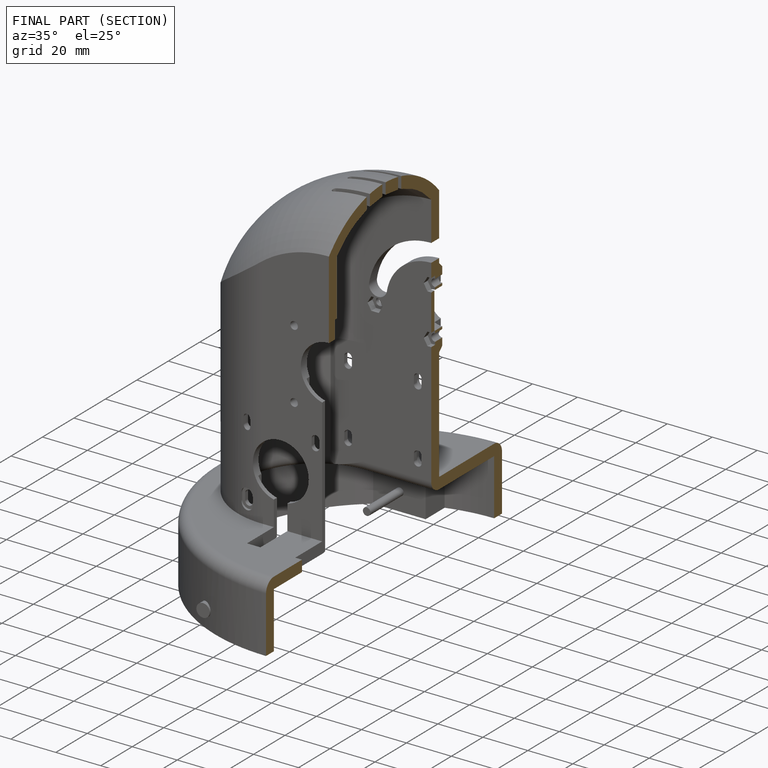
[diagram: finished part — half-section view (interior)]
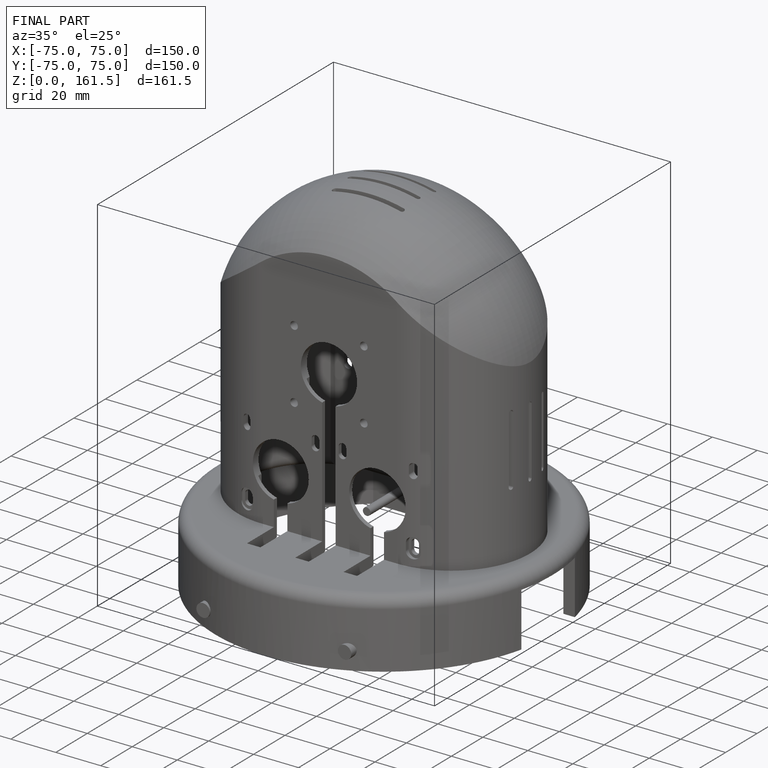
[diagram: finished part — iso view with bounding-box wireframe]
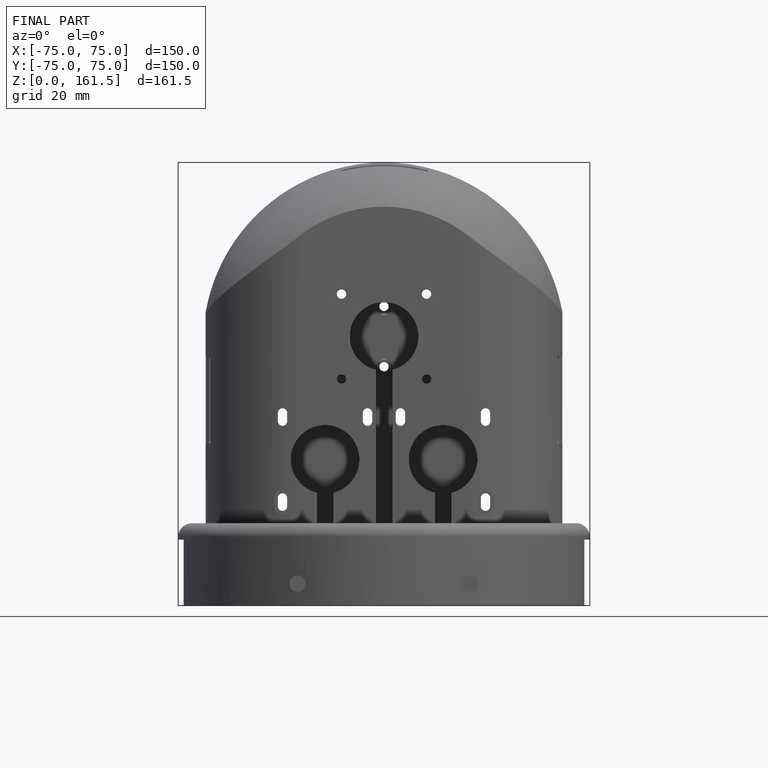
[diagram: finished part — front view with bounding-box wireframe]
